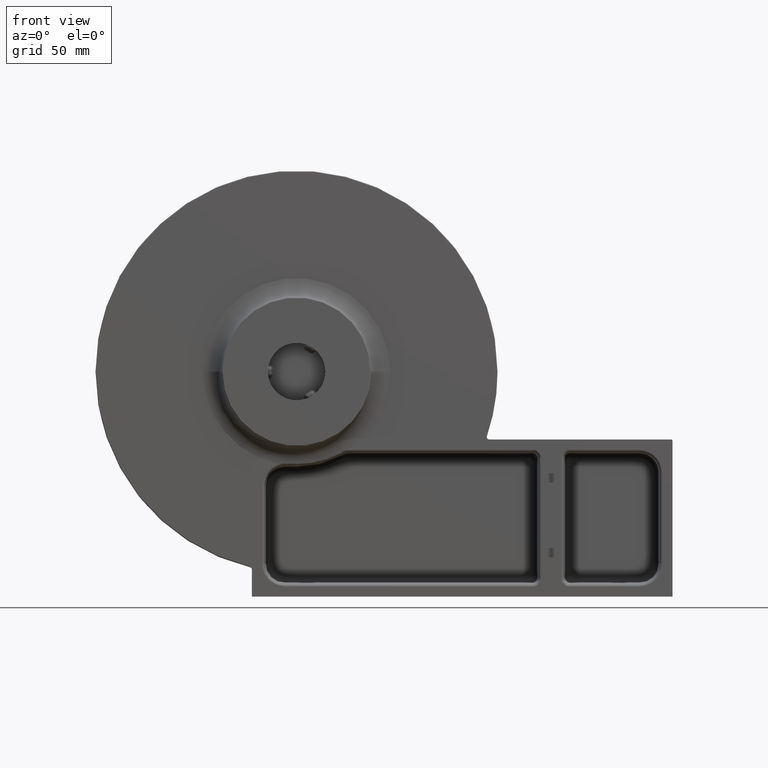
[diagram: clean part render]
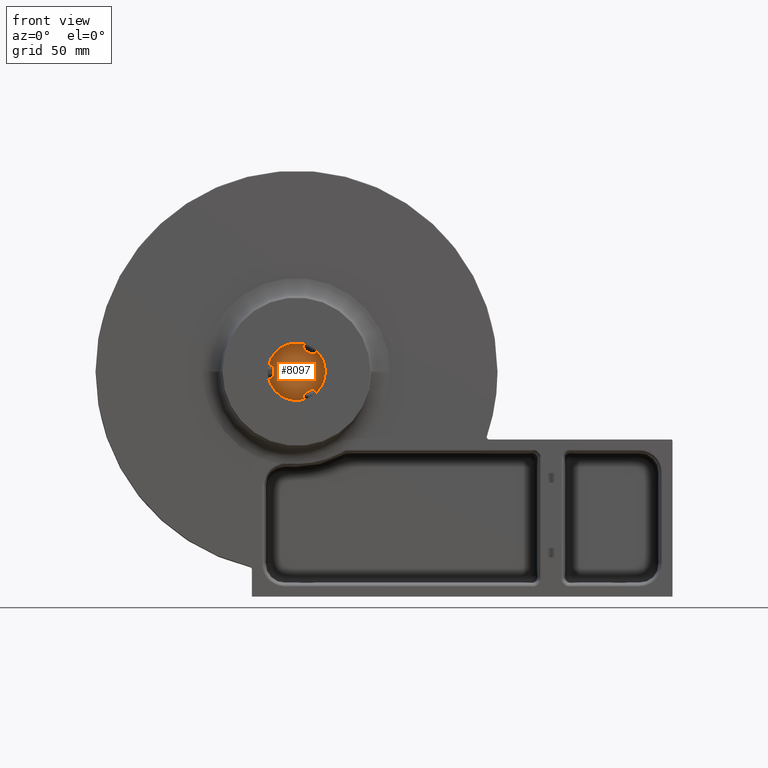
[diagram: same view with one face highlighted and labeled with its STEP entity id]
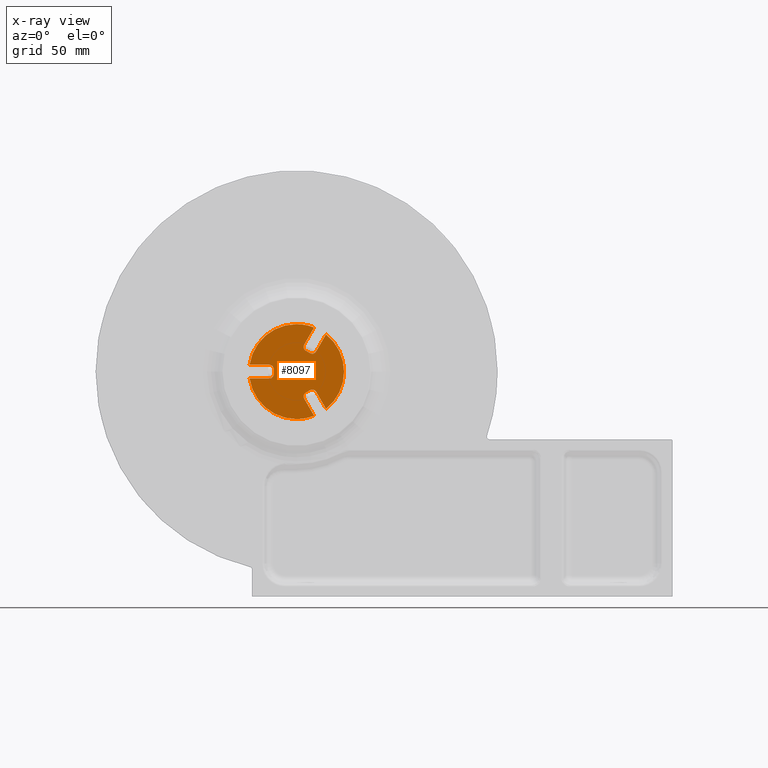
[diagram: x-ray of the same camera — body ghosted, the highlighted face saturated]
A machine part, front view. The second image highlights one B-rep face of the part: STEP entity #8097.
The next image is the same camera in x-ray: the body ghosted, the highlighted face saturated — about 0% of this face is hidden behind the body in this view.
In plain terms, the highlighted planar face has unit normal (0, -1, 0).
Its self-contained STEP definition (entity closure, byte-faithful):
#46 = VECTOR ( 'NONE', #2781, 1000.000000000000114 ) ;
#272 = VERTEX_POINT ( 'NONE', #9308 ) ;
#382 = EDGE_CURVE ( 'NONE', #3561, #9621, #8891, .T. ) ;
#421 = VECTOR ( 'NONE', #5484, 1000.000000000000114 ) ;
#479 = CIRCLE ( 'NONE', #6328, 3.500000000000003109 ) ;
#526 = EDGE_CURVE ( 'NONE', #594, #3561, #9319, .T. ) ;
#552 = DIRECTION ( 'NONE',  ( 0.0000000000000000000, 0.0000000000000000000, 1.000000000000000000 ) ) ;
#594 = VERTEX_POINT ( 'NONE', #8136 ) ;
#663 = DIRECTION ( 'NONE',  ( 1.000000000000000000, -0.0000000000000000000, -0.0000000000000000000 ) ) ;
#692 = VERTEX_POINT ( 'NONE', #7916 ) ;
#703 = EDGE_CURVE ( 'NONE', #4148, #272, #4193, .T. ) ;
#772 = CIRCLE ( 'NONE', #5388, 3.500000000000000888 ) ;
#955 = DIRECTION ( 'NONE',  ( 9.912705577010322591E-16, 0.0000000000000000000, -1.000000000000000000 ) ) ;
#1363 = CARTESIAN_POINT ( 'NONE',  ( 7.367949192431121119, 28.26575789991629151, 16.76166234887678996 ) ) ;
#1390 = CARTESIAN_POINT ( 'NONE',  ( -37.59986702104142609, 28.26575789991629151, 5.500000000000000000 ) ) ;
#1472 = EDGE_CURVE ( 'NONE', #4330, #7741, #3236, .T. ) ;
#1588 = DIRECTION ( 'NONE',  ( 0.0000000000000000000, 0.0000000000000000000, 1.000000000000000000 ) ) ;
#1591 = DIRECTION ( 'NONE',  ( -0.0000000000000000000, 1.000000000000000000, -0.0000000000000000000 ) ) ;
#1603 = CARTESIAN_POINT ( 'NONE',  ( 0.0000000000000000000, 28.26575789991629151, 0.0000000000000000000 ) ) ;
#1681 = VECTOR ( 'NONE', #8879, 1000.000000000000114 ) ;
#1784 = DIRECTION ( 'NONE',  ( -1.000000000000000000, 0.0000000000000000000, 0.0000000000000000000 ) ) ;
#1795 = CARTESIAN_POINT ( 'NONE',  ( 0.0000000000000000000, 28.26575789991629151, -5.499999999999998224 ) ) ;
#1799 = LINE ( 'NONE', #1795, #3422 ) ;
#1835 = VERTEX_POINT ( 'NONE', #4044 ) ;
#1954 = ORIENTED_EDGE ( 'NONE', *, *, #7623, .T. ) ;
#1968 = ORIENTED_EDGE ( 'NONE', *, *, #6816, .T. ) ;
#1989 = DIRECTION ( 'NONE',  ( 0.8660254037844383745, -0.0000000000000000000, 0.5000000000000004441 ) ) ;
#2007 = ORIENTED_EDGE ( 'NONE', *, *, #703, .T. ) ;
#2008 = DIRECTION ( 'NONE',  ( 0.0000000000000000000, 0.0000000000000000000, -1.000000000000000000 ) ) ;
#2021 = ORIENTED_EDGE ( 'NONE', *, *, #3762, .T. ) ;
#2053 = CARTESIAN_POINT ( 'NONE',  ( 14.03679378970629443, 28.26575789991629151, 35.31244001913860586 ) ) ;
#2093 = ORIENTED_EDGE ( 'NONE', *, *, #5911, .F. ) ;
#2135 = ORIENTED_EDGE ( 'NONE', *, *, #382, .T. ) ;
#2223 = ORIENTED_EDGE ( 'NONE', *, *, #9288, .T. ) ;
#2226 = DIRECTION ( 'NONE',  ( 0.0000000000000000000, -0.0000000000000000000, -1.000000000000000000 ) ) ;
#2259 = VERTEX_POINT ( 'NONE', #2940 ) ;
#2277 = ORIENTED_EDGE ( 'NONE', *, *, #8381, .T. ) ;
#2327 = ORIENTED_EDGE ( 'NONE', *, *, #4551, .T. ) ;
#2374 = ORIENTED_EDGE ( 'NONE', *, *, #1472, .F. ) ;
#2428 = ORIENTED_EDGE ( 'NONE', *, *, #2520, .F. ) ;
#2439 = ORIENTED_EDGE ( 'NONE', *, *, #4927, .T. ) ;
#2473 = ORIENTED_EDGE ( 'NONE', *, *, #8714, .T. ) ;
#2516 = DIRECTION ( 'NONE',  ( 0.0000000000000000000, 0.0000000000000000000, 1.000000000000000000 ) ) ;
#2517 = ORIENTED_EDGE ( 'NONE', *, *, #3049, .T. ) ;
#2520 = EDGE_CURVE ( 'NONE', #7741, #3008, #3581, .T. ) ;
#2530 = ORIENTED_EDGE ( 'NONE', *, *, #3620, .T. ) ;
#2575 = CARTESIAN_POINT ( 'NONE',  ( -7.354482671904329472, 28.26575789991629151, 25.26166234887679352 ) ) ;
#2587 = ORIENTED_EDGE ( 'NONE', *, *, #5975, .T. ) ;
#2614 = ORIENTED_EDGE ( 'NONE', *, *, #9500, .F. ) ;
#2618 = VECTOR ( 'NONE', #5717, 1000.000000000000114 ) ;
#2624 = ORIENTED_EDGE ( 'NONE', *, *, #6200, .F. ) ;
#2649 = DIRECTION ( 'NONE',  ( 0.0000000000000000000, 0.0000000000000000000, -1.000000000000000000 ) ) ;
#2672 = ORIENTED_EDGE ( 'NONE', *, *, #5343, .T. ) ;
#2682 = ORIENTED_EDGE ( 'NONE', *, *, #526, .T. ) ;
#2694 = ORIENTED_EDGE ( 'NONE', *, *, #6858, .T. ) ;
#2706 = CARTESIAN_POINT ( 'NONE',  ( 12.58205080756887462, 28.26575789991629151, 17.79275126212232649 ) ) ;
#2733 = LINE ( 'NONE', #5861, #8823 ) ;
#2769 = VECTOR ( 'NONE', #663, 1000.000000000000000 ) ;
#2781 = DIRECTION ( 'NONE',  ( -0.5000000000000004441, -0.0000000000000000000, 0.8660254037844383745 ) ) ;
#2786 = CARTESIAN_POINT ( 'NONE',  ( -21.21762239271874861, 28.26575789991629151, 25.74999999999997158 ) ) ;
#2793 = VERTEX_POINT ( 'NONE', #9534 ) ;
#2795 = LINE ( 'NONE', #2786, #46 ) ;
#2807 = CIRCLE ( 'NONE', #8276, 3.499999999999999556 ) ;
#2868 = VERTEX_POINT ( 'NONE', #4194 ) ;
#2940 = CARTESIAN_POINT ( 'NONE',  ( -21.70000000000000284, 28.26575789991629151, 5.500000000000001776 ) ) ;
#2951 = CIRCLE ( 'NONE', #8383, 3.500000000000003109 ) ;
#2965 = CARTESIAN_POINT ( 'NONE',  ( 10.83205080756887995, 28.26575789991629151, 14.76166234887678286 ) ) ;
#3008 = VERTEX_POINT ( 'NONE', #7718 ) ;
#3025 = PLANE ( 'NONE',  #7431 ) ;
#3049 = EDGE_CURVE ( 'NONE', #5965, #2868, #7624, .T. ) ;
#3139 = CARTESIAN_POINT ( 'NONE',  ( -18.19999999999999929, 28.26575789991629151, 1.999999999999999112 ) ) ;
#3217 = AXIS2_PLACEMENT_3D ( 'NONE', #8280, #8250, #8249 ) ;
#3236 = CIRCLE ( 'NONE', #5848, 37.99999999999998579 ) ;
#3242 = CARTESIAN_POINT ( 'NONE',  ( 14.03679378970631753, 28.26575789991629151, -35.31244001913859165 ) ) ;
#3316 = CIRCLE ( 'NONE', #8650, 3.500000000000001332 ) ;
#3394 = AXIS2_PLACEMENT_3D ( 'NONE', #7874, #7870, #7862 ) ;
#3409 = VERTEX_POINT ( 'NONE', #6494 ) ;
#3422 = VECTOR ( 'NONE', #1784, 1000.000000000000000 ) ;
#3476 = AXIS2_PLACEMENT_3D ( 'NONE', #6375, #9012, #2516 ) ;
#3561 = VERTEX_POINT ( 'NONE', #6114 ) ;
#3581 = CIRCLE ( 'NONE', #8344, 37.99999999999998579 ) ;
#3620 = EDGE_CURVE ( 'NONE', #2259, #5965, #772, .T. ) ;
#3762 = EDGE_CURVE ( 'NONE', #1835, #4148, #5491, .T. ) ;
#3910 = CIRCLE ( 'NONE', #9088, 37.99999999999998579 ) ;
#4044 = CARTESIAN_POINT ( 'NONE',  ( 23.56307323133512099, 28.26575789991629151, 29.81244001913860231 ) ) ;
#4148 = VERTEX_POINT ( 'NONE', #4198 ) ;
#4193 = CIRCLE ( 'NONE', #3394, 3.500000000000003109 ) ;
#4194 = CARTESIAN_POINT ( 'NONE',  ( -18.20000000000000284, 28.26575789991629151, -1.999999999999999556 ) ) ;
#4198 = CARTESIAN_POINT ( 'NONE',  ( 15.61313972081441470, 28.26575789991629151, 16.04275126212232649 ) ) ;
#4299 = DIRECTION ( 'NONE',  ( -0.0000000000000000000, 1.000000000000000000, -0.0000000000000000000 ) ) ;
#4330 = VERTEX_POINT ( 'NONE', #3242 ) ;
#4489 = VERTEX_POINT ( 'NONE', #2965 ) ;
#4551 = EDGE_CURVE ( 'NONE', #4330, #7138, #2795, .T. ) ;
#4607 = VECTOR ( 'NONE', #1989, 1000.000000000000114 ) ;
#4629 = CARTESIAN_POINT ( 'NONE',  ( 0.0000000000000000000, 28.26575789991629151, 0.0000000000000000000 ) ) ;
#4723 = LINE ( 'NONE', #7692, #2769 ) ;
#4805 = VERTEX_POINT ( 'NONE', #2053 ) ;
#4859 = VECTOR ( 'NONE', #7618, 1000.000000000000000 ) ;
#4927 = EDGE_CURVE ( 'NONE', #2793, #3008, #1799, .T. ) ;
#4998 = CARTESIAN_POINT ( 'NONE',  ( -21.70000000000000284, 28.26575789991629151, -2.000000000000000000 ) ) ;
#5077 = CIRCLE ( 'NONE', #6317, 37.99999999999998579 ) ;
#5343 = EDGE_CURVE ( 'NONE', #3409, #4805, #2733, .T. ) ;
#5388 = AXIS2_PLACEMENT_3D ( 'NONE', #6039, #6030, #6027 ) ;
#5468 = CARTESIAN_POINT ( 'NONE',  ( 4.776122516674676300E-15, 28.26575789991629151, -37.99999999999998579 ) ) ;
#5484 = DIRECTION ( 'NONE',  ( -0.4999999999999998335, -0.0000000000000000000, -0.8660254037844387076 ) ) ;
#5488 = CARTESIAN_POINT ( 'NONE',  ( 21.21762239271873440, 28.26575789991629151, 25.75000000000000000 ) ) ;
#5491 = LINE ( 'NONE', #5488, #421 ) ;
#5717 = DIRECTION ( 'NONE',  ( -0.8660254037844383745, -0.0000000000000000000, 0.5000000000000004441 ) ) ;
#5820 = VERTEX_POINT ( 'NONE', #8648 ) ;
#5830 = DIRECTION ( 'NONE',  ( 0.0000000000000000000, 0.0000000000000000000, 1.000000000000000000 ) ) ;
#5835 = DIRECTION ( 'NONE',  ( -0.0000000000000000000, 1.000000000000000000, -0.0000000000000000000 ) ) ;
#5840 = DIRECTION ( 'NONE',  ( -0.0000000000000000000, 1.000000000000000000, -0.0000000000000000000 ) ) ;
#5843 = CARTESIAN_POINT ( 'NONE',  ( 0.0000000000000000000, 28.26575789991629151, 0.0000000000000000000 ) ) ;
#5848 = AXIS2_PLACEMENT_3D ( 'NONE', #5843, #5840, #5830 ) ;
#5861 = CARTESIAN_POINT ( 'NONE',  ( 11.69134295108990784, 28.26575789991629151, 31.24999999999999645 ) ) ;
#5911 = EDGE_CURVE ( 'NONE', #1835, #9621, #5077, .T. ) ;
#5918 = LINE ( 'NONE', #8660, #4607 ) ;
#5933 = CARTESIAN_POINT ( 'NONE',  ( 9.117949192431121119, 28.26575789991629151, 19.79275126212232649 ) ) ;
#5965 = VERTEX_POINT ( 'NONE', #3139 ) ;
#5975 = EDGE_CURVE ( 'NONE', #9653, #2259, #4723, .T. ) ;
#6027 = DIRECTION ( 'NONE',  ( 0.0000000000000000000, 0.0000000000000000000, -1.000000000000000000 ) ) ;
#6030 = DIRECTION ( 'NONE',  ( -0.0000000000000000000, 1.000000000000000000, -0.0000000000000000000 ) ) ;
#6039 = CARTESIAN_POINT ( 'NONE',  ( -21.70000000000000284, 28.26575789991629151, 2.000000000000000000 ) ) ;
#6113 = CARTESIAN_POINT ( 'NONE',  ( 0.0000000000000000000, 28.26575789991629151, 37.99999999999998579 ) ) ;
#6114 = CARTESIAN_POINT ( 'NONE',  ( 15.61313972081442536, 28.26575789991629151, -16.04275126212231939 ) ) ;
#6120 = CARTESIAN_POINT ( 'NONE',  ( 23.56307323133514586, 28.26575789991629151, -29.81244001913859165 ) ) ;
#6200 = EDGE_CURVE ( 'NONE', #5820, #4805, #3910, .T. ) ;
#6317 = AXIS2_PLACEMENT_3D ( 'NONE', #4629, #7605, #552 ) ;
#6328 = AXIS2_PLACEMENT_3D ( 'NONE', #5933, #8672, #2008 ) ;
#6354 = EDGE_LOOP ( 'NONE', ( #2694, #2672, #2624, #2614, #2587, #2530, #2517, #2473, #2439, #2428, #2374, #2327, #2277, #2223, #2682, #2135, #2093, #2021, #2007, #1968, #1954 ) ) ;
#6375 = CARTESIAN_POINT ( 'NONE',  ( 0.0000000000000000000, 28.26575789991629151, 0.0000000000000000000 ) ) ;
#6493 = CARTESIAN_POINT ( 'NONE',  ( 9.117949192431133554, 28.26575789991629151, -19.79275126212232294 ) ) ;
#6494 = CARTESIAN_POINT ( 'NONE',  ( 6.086860279185582812, 28.26575789991629151, 21.54275126212232649 ) ) ;
#6510 = CIRCLE ( 'NONE', #3476, 37.99999999999998579 ) ;
#6816 = EDGE_CURVE ( 'NONE', #272, #4489, #2951, .T. ) ;
#6858 = EDGE_CURVE ( 'NONE', #7418, #3409, #479, .T. ) ;
#7138 = VERTEX_POINT ( 'NONE', #9021 ) ;
#7318 = DIRECTION ( 'NONE',  ( 0.0000000000000000000, 0.0000000000000000000, 1.000000000000000000 ) ) ;
#7418 = VERTEX_POINT ( 'NONE', #1363 ) ;
#7431 = AXIS2_PLACEMENT_3D ( 'NONE', #6113, #8798, #2226 ) ;
#7605 = DIRECTION ( 'NONE',  ( -0.0000000000000000000, 1.000000000000000000, -0.0000000000000000000 ) ) ;
#7618 = DIRECTION ( 'NONE',  ( -0.0000000000000000000, -0.0000000000000000000, -1.000000000000000000 ) ) ;
#7620 = CARTESIAN_POINT ( 'NONE',  ( -18.19999999999999929, 28.26575789991629151, 37.99999999999998579 ) ) ;
#7623 = EDGE_CURVE ( 'NONE', #4489, #7418, #9053, .T. ) ;
#7624 = LINE ( 'NONE', #7620, #4859 ) ;
#7692 = CARTESIAN_POINT ( 'NONE',  ( 0.0000000000000000000, 28.26575789991629151, 5.499999999999998224 ) ) ;
#7718 = CARTESIAN_POINT ( 'NONE',  ( -37.59986702104142609, 28.26575789991629151, -5.500000000000001776 ) ) ;
#7741 = VERTEX_POINT ( 'NONE', #5468 ) ;
#7862 = DIRECTION ( 'NONE',  ( 1.982541115402063335E-15, 0.0000000000000000000, -1.000000000000000000 ) ) ;
#7870 = DIRECTION ( 'NONE',  ( -0.0000000000000000000, 1.000000000000000000, -0.0000000000000000000 ) ) ;
#7874 = CARTESIAN_POINT ( 'NONE',  ( 12.58205080756887462, 28.26575789991629151, 17.79275126212232649 ) ) ;
#7916 = CARTESIAN_POINT ( 'NONE',  ( 7.367949192431133554, 28.26575789991629151, -16.76166234887678996 ) ) ;
#7940 = DIRECTION ( 'NONE',  ( -0.0000000000000000000, 1.000000000000000000, -0.0000000000000000000 ) ) ;
#8097 = ADVANCED_FACE ( 'NONE', ( #9383 ), #3025, .T. ) ;
#8136 = CARTESIAN_POINT ( 'NONE',  ( 10.83205080756888883, 28.26575789991629151, -14.76166234887678108 ) ) ;
#8249 = DIRECTION ( 'NONE',  ( 1.982541115402061363E-15, 0.0000000000000000000, -1.000000000000000000 ) ) ;
#8250 = DIRECTION ( 'NONE',  ( -0.0000000000000000000, 1.000000000000000000, -0.0000000000000000000 ) ) ;
#8276 = AXIS2_PLACEMENT_3D ( 'NONE', #6493, #9110, #2649 ) ;
#8280 = CARTESIAN_POINT ( 'NONE',  ( 12.58205080756888705, 28.26575789991629151, -17.79275126212232649 ) ) ;
#8344 = AXIS2_PLACEMENT_3D ( 'NONE', #1603, #1591, #1588 ) ;
#8381 = EDGE_CURVE ( 'NONE', #7138, #692, #2807, .T. ) ;
#8383 = AXIS2_PLACEMENT_3D ( 'NONE', #2706, #5835, #8593 ) ;
#8592 = CARTESIAN_POINT ( 'NONE',  ( 0.0000000000000000000, 28.26575789991629151, 0.0000000000000000000 ) ) ;
#8593 = DIRECTION ( 'NONE',  ( 0.0000000000000000000, 0.0000000000000000000, -1.000000000000000000 ) ) ;
#8614 = DIRECTION ( 'NONE',  ( 0.4999999999999998335, -0.0000000000000000000, 0.8660254037844387076 ) ) ;
#8648 = CARTESIAN_POINT ( 'NONE',  ( 0.0000000000000000000, 28.26575789991629151, 37.99999999999998579 ) ) ;
#8650 = AXIS2_PLACEMENT_3D ( 'NONE', #4998, #7940, #955 ) ;
#8660 = CARTESIAN_POINT ( 'NONE',  ( 25.55448267190435274, 28.26575789991629151, -6.261662348876775752 ) ) ;
#8672 = DIRECTION ( 'NONE',  ( -0.0000000000000000000, 1.000000000000000000, -0.0000000000000000000 ) ) ;
#8714 = EDGE_CURVE ( 'NONE', #2868, #2793, #3316, .T. ) ;
#8798 = DIRECTION ( 'NONE',  ( 0.0000000000000000000, -1.000000000000000000, 0.0000000000000000000 ) ) ;
#8823 = VECTOR ( 'NONE', #8614, 1000.000000000000114 ) ;
#8879 = DIRECTION ( 'NONE',  ( 0.5000000000000004441, -0.0000000000000000000, -0.8660254037844383745 ) ) ;
#8887 = CARTESIAN_POINT ( 'NONE',  ( -11.69134295108992383, 28.26575789991629151, 31.24999999999997513 ) ) ;
#8891 = LINE ( 'NONE', #8887, #1681 ) ;
#9012 = DIRECTION ( 'NONE',  ( -0.0000000000000000000, 1.000000000000000000, -0.0000000000000000000 ) ) ;
#9021 = CARTESIAN_POINT ( 'NONE',  ( 6.086860279185602352, 28.26575789991629151, -21.54275126212232294 ) ) ;
#9053 = LINE ( 'NONE', #2575, #2618 ) ;
#9088 = AXIS2_PLACEMENT_3D ( 'NONE', #8592, #4299, #7318 ) ;
#9110 = DIRECTION ( 'NONE',  ( -0.0000000000000000000, 1.000000000000000000, -0.0000000000000000000 ) ) ;
#9288 = EDGE_CURVE ( 'NONE', #692, #594, #5918, .T. ) ;
#9308 = CARTESIAN_POINT ( 'NONE',  ( 12.58205080756887462, 28.26575789991629151, 14.29275126212232294 ) ) ;
#9319 = CIRCLE ( 'NONE', #3217, 3.500000000000006661 ) ;
#9383 = FACE_OUTER_BOUND ( 'NONE', #6354, .T. ) ;
#9500 = EDGE_CURVE ( 'NONE', #9653, #5820, #6510, .T. ) ;
#9534 = CARTESIAN_POINT ( 'NONE',  ( -21.70000000000000284, 28.26575789991629151, -5.499999999999998224 ) ) ;
#9621 = VERTEX_POINT ( 'NONE', #6120 ) ;
#9653 = VERTEX_POINT ( 'NONE', #1390 ) ;